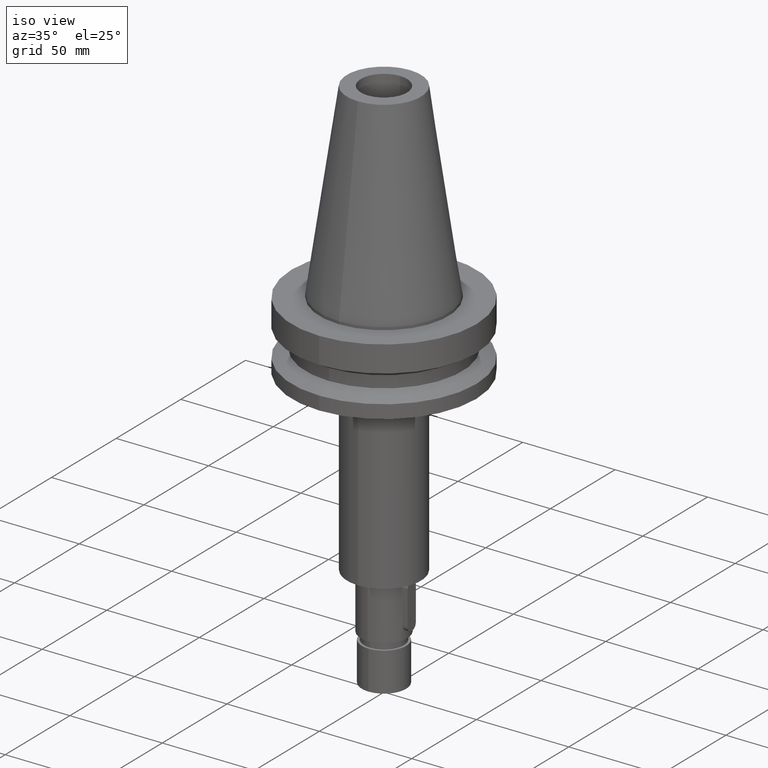
[diagram: clean part render]
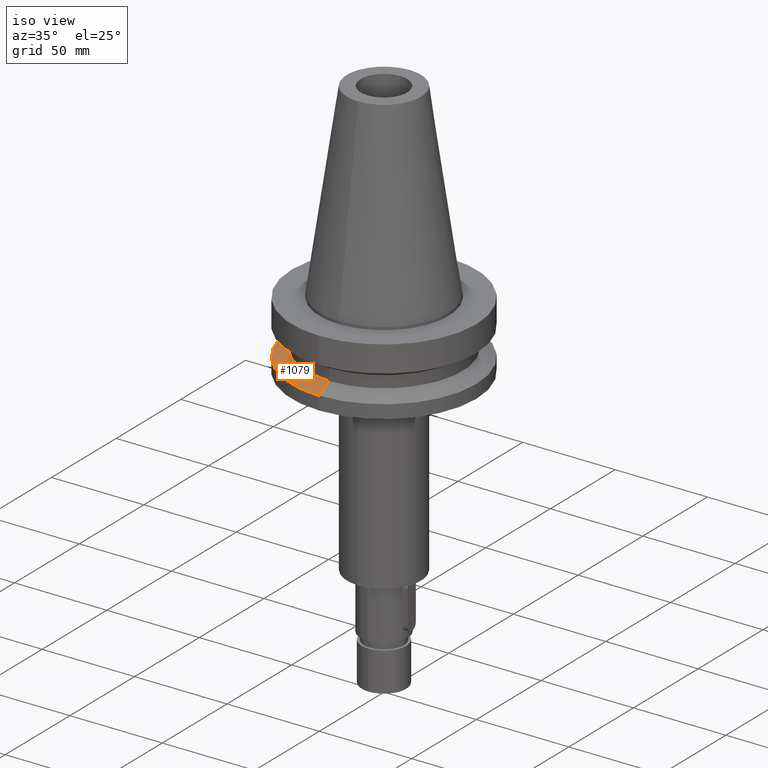
[diagram: same view with one face highlighted and labeled with its STEP entity id]
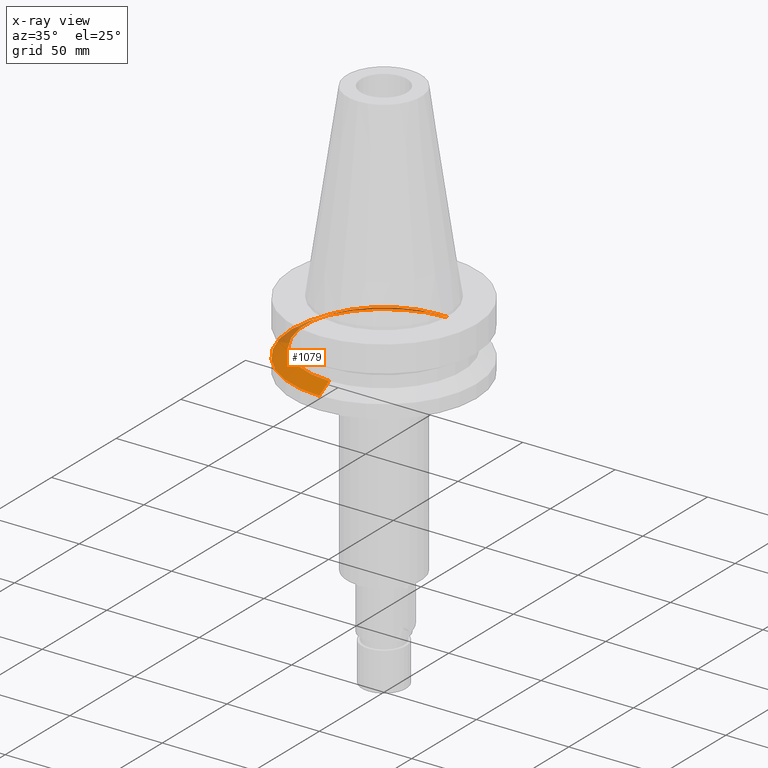
[diagram: x-ray of the same camera — body ghosted, the highlighted face saturated]
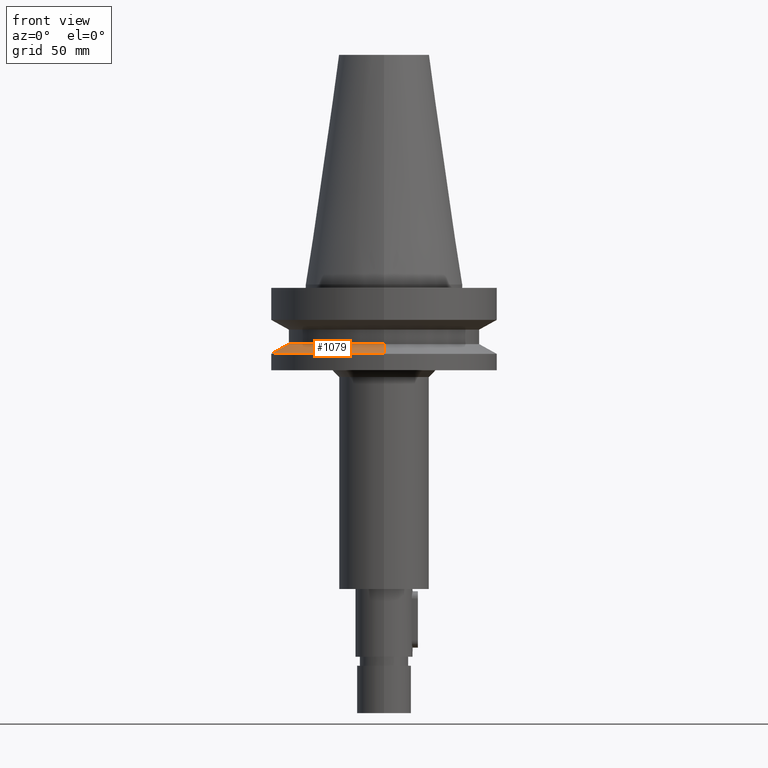
[diagram: same view with one face highlighted and labeled with its STEP entity id]
A machine part, iso view. The second image highlights one B-rep face of the part: STEP entity #1079.
The next image is the same camera in x-ray: the body ghosted, the highlighted face saturated — about 21% of this face is hidden behind the body in this view.
A second angle (front view) of the same face is appended — the face is thin or edge-on in the first view.
In plain terms, the highlighted conical surface has half-angle 60 deg.
Its self-contained STEP definition (entity closure, byte-faithful):
#276=CARTESIAN_POINT('',(0.E0,0.E0,-2.640718074535E1));
#277=DIRECTION('',(0.E0,0.E0,1.E0));
#278=DIRECTION('',(0.E0,1.E0,0.E0));
#279=AXIS2_PLACEMENT_3D('',#276,#277,#278);
#284=DIRECTION('',(0.E0,-8.660254037845E-1,-4.999999999999E-1));
#285=VECTOR('',#284,8.660254037843E0);
#286=CARTESIAN_POINT('',(0.E0,-4.25E1,-2.640718074535E1));
#287=LINE('',#286,#285);
#291=CARTESIAN_POINT('',(0.E0,0.E0,-3.073730776427E1));
#292=DIRECTION('',(0.E0,0.E0,-1.E0));
#293=DIRECTION('',(0.E0,-1.E0,0.E0));
#294=AXIS2_PLACEMENT_3D('',#291,#292,#293);
#299=DIRECTION('',(0.E0,8.660254037845E-1,-4.999999999999E-1));
#300=VECTOR('',#299,8.660254037843E0);
#301=CARTESIAN_POINT('',(0.E0,4.25E1,-2.640718074535E1));
#302=LINE('',#301,#300);
#742=CARTESIAN_POINT('',(0.E0,4.25E1,-2.640718074535E1));
#743=VERTEX_POINT('',#742);
#744=CARTESIAN_POINT('',(1.040949779275E-14,-4.25E1,-2.640718074535E1));
#745=VERTEX_POINT('',#744);
#746=CARTESIAN_POINT('',(0.E0,5.E1,-3.073730776427E1));
#747=VERTEX_POINT('',#746);
#748=CARTESIAN_POINT('',(0.E0,-5.E1,-3.073730776427E1));
#749=VERTEX_POINT('',#748);
#1065=CARTESIAN_POINT('',(0.E0,0.E0,-2.857224425481E1));
#1066=DIRECTION('',(0.E0,0.E0,-1.E0));
#1067=DIRECTION('',(0.E0,-1.E0,0.E0));
#1068=AXIS2_PLACEMENT_3D('',#1065,#1066,#1067);
#1069=CONICAL_SURFACE('',#1068,4.625E1,6.E1);
#1071=ORIENTED_EDGE('',*,*,#1070,.F.);
#1072=ORIENTED_EDGE('',*,*,#1060,.T.);
#1074=ORIENTED_EDGE('',*,*,#1073,.T.);
#1076=ORIENTED_EDGE('',*,*,#1075,.T.);
#1077=EDGE_LOOP('',(#1071,#1072,#1074,#1076));
#1078=FACE_OUTER_BOUND('',#1077,.F.);
#280=CIRCLE('',#279,4.25E1);
#295=CIRCLE('',#294,5.E1);
#1060=EDGE_CURVE('',#743,#745,#280,.T.);
#1070=EDGE_CURVE('',#743,#747,#302,.T.);
#1073=EDGE_CURVE('',#745,#749,#287,.T.);
#1075=EDGE_CURVE('',#749,#747,#295,.T.);
#1079=ADVANCED_FACE('',(#1078),#1069,.T.);